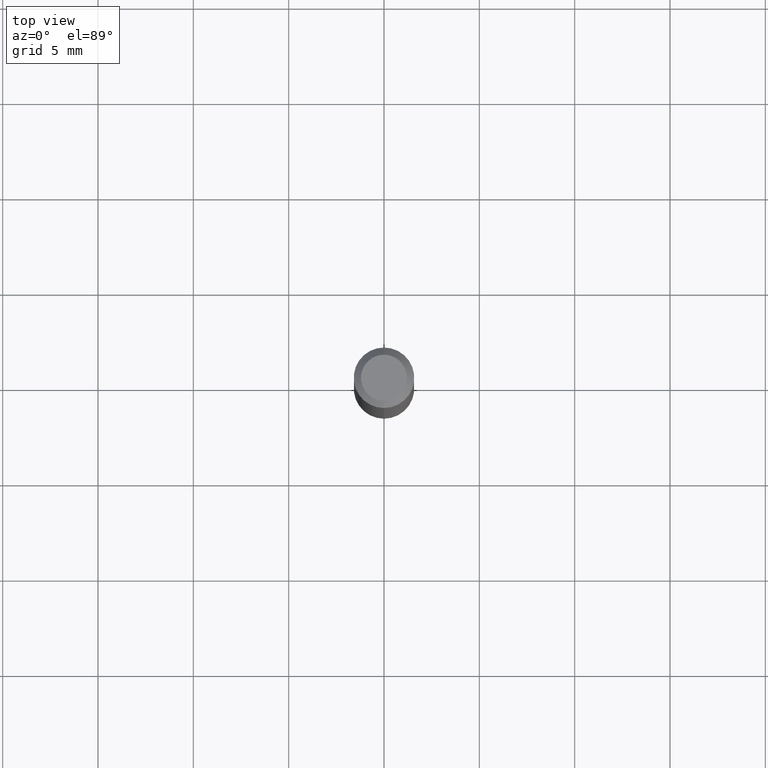
[diagram: clean part render]
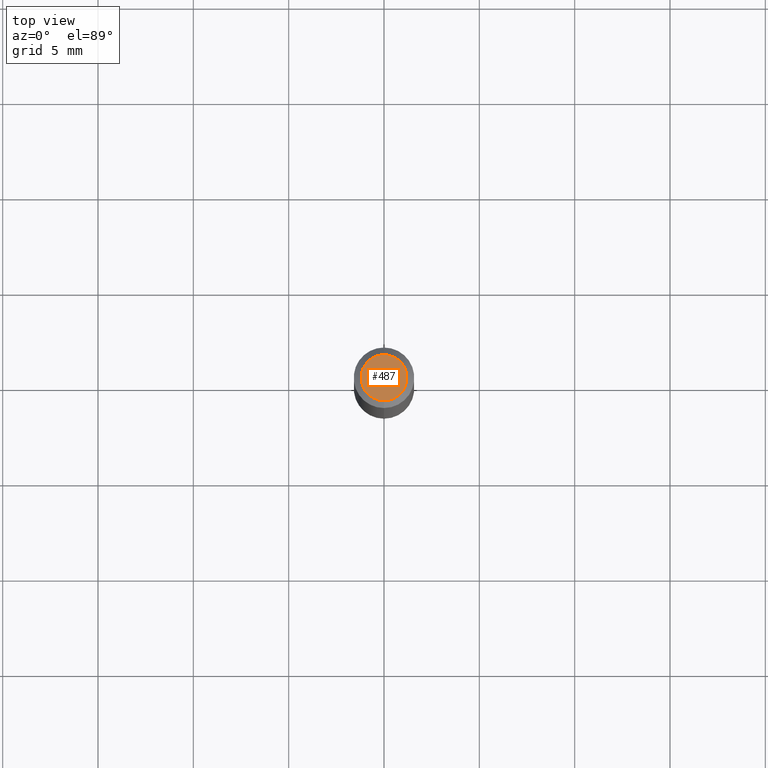
[diagram: same view with one face highlighted and labeled with its STEP entity id]
A machine part, top view. The second image highlights one B-rep face of the part: STEP entity #487.
In plain terms, the highlighted planar face has unit normal (0, -0, -1).
Its self-contained STEP definition (entity closure, byte-faithful):
#14 = PLANE ( 'NONE',  #109 ) ;
#16 = DIRECTION ( 'NONE',  ( -6.982962677686266711E-15, -1.000000000000000000, 3.491490343577917487E-15 ) ) ;
#24 = EDGE_CURVE ( 'NONE', #495, #344, #295, .T. ) ;
#58 = CARTESIAN_POINT ( 'NONE',  ( -3.773273898774340269E-16, -0.04749999999999999362, -1.623007286673070260E-16 ) ) ;
#65 = CARTESIAN_POINT ( 'NONE',  ( 8.024700151106933838E-45, -1.145720405814209478E-30, -3.281465199872580750E-16 ) ) ;
#103 = DIRECTION ( 'NONE',  ( -2.445462518212453604E-29, 3.491490343577917092E-15, 1.000000000000000000 ) ) ;
#108 = DIRECTION ( 'NONE',  ( -2.445462518212453604E-29, 3.491490343577917092E-15, 1.000000000000000000 ) ) ;
#109 = AXIS2_PLACEMENT_3D ( 'NONE', #285, #171, #484 ) ;
#135 = EDGE_CURVE ( 'NONE', #344, #495, #479, .T. ) ;
#150 = CARTESIAN_POINT ( 'NONE',  ( 3.840629472727447874E-16, 0.04749999999999999362, -4.939923113072091241E-16 ) ) ;
#161 = EDGE_LOOP ( 'NONE', ( #383, #270 ) ) ;
#171 = DIRECTION ( 'NONE',  ( 2.445462518212453043E-29, -3.491490343577917092E-15, -1.000000000000000000 ) ) ;
#191 = AXIS2_PLACEMENT_3D ( 'NONE', #456, #108, #475 ) ;
#251 = AXIS2_PLACEMENT_3D ( 'NONE', #65, #103, #16 ) ;
#270 = ORIENTED_EDGE ( 'NONE', *, *, #24, .T. ) ;
#285 = CARTESIAN_POINT ( 'NONE',  ( 3.316907271900976096E-16, 0.04749999999999999362, -3.299190513135800373E-16 ) ) ;
#295 = CIRCLE ( 'NONE', #191, 0.04749999999999999362 ) ;
#344 = VERTEX_POINT ( 'NONE', #150 ) ;
#360 = FACE_OUTER_BOUND ( 'NONE', #161, .T. ) ;
#383 = ORIENTED_EDGE ( 'NONE', *, *, #135, .T. ) ;
#456 = CARTESIAN_POINT ( 'NONE',  ( 8.024700151106933838E-45, -1.145720405814209478E-30, -3.281465199872580750E-16 ) ) ;
#475 = DIRECTION ( 'NONE',  ( -6.982962677686266711E-15, -1.000000000000000000, 3.491490343577917487E-15 ) ) ;
#479 = CIRCLE ( 'NONE', #251, 0.04749999999999999362 ) ;
#484 = DIRECTION ( 'NONE',  ( 6.982962677686265922E-15, 1.000000000000000000, -3.491490343577917092E-15 ) ) ;
#487 = ADVANCED_FACE ( 'NONE', ( #360 ), #14, .F. ) ;
#495 = VERTEX_POINT ( 'NONE', #58 ) ;